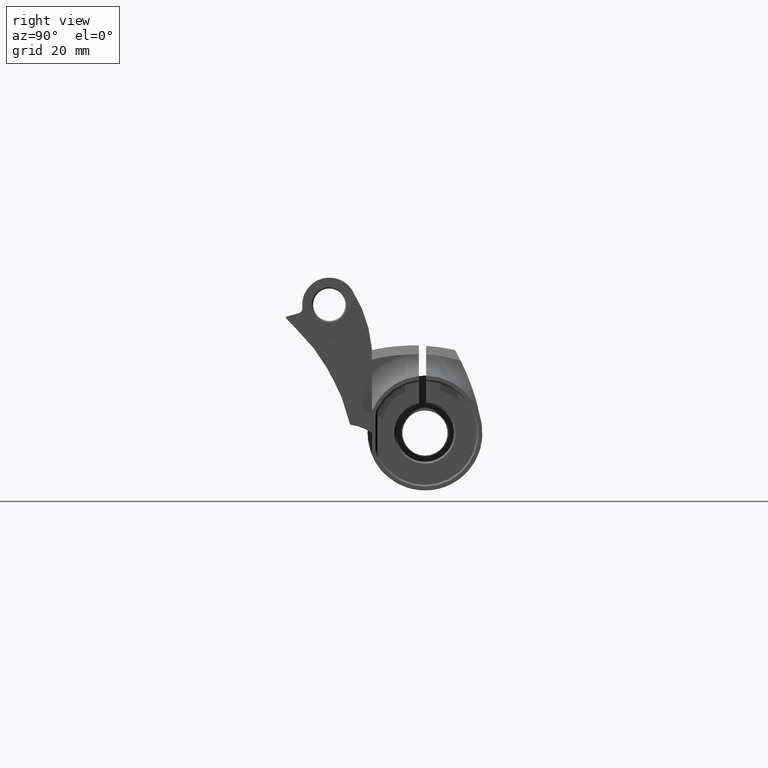
[diagram: clean part render]
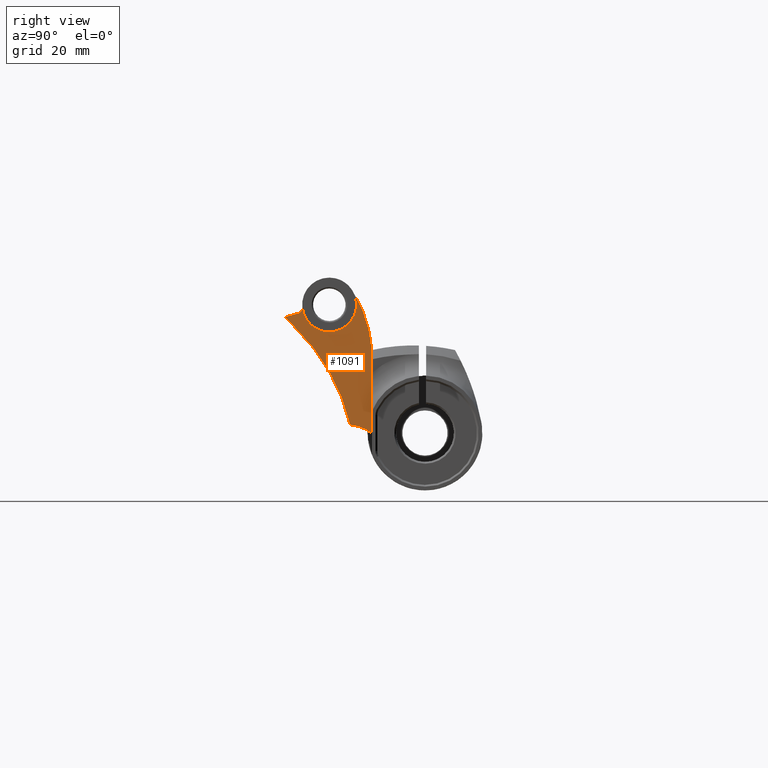
[diagram: same view with one face highlighted and labeled with its STEP entity id]
A machine part, right view. The second image highlights one B-rep face of the part: STEP entity #1091.
In plain terms, the highlighted planar face has unit normal (-1, 0, 0).
Its self-contained STEP definition (entity closure, byte-faithful):
#55 = CIRCLE ( 'NONE', #1735, 7.500000000000000000 ) ;
#170 = CARTESIAN_POINT ( 'NONE',  ( 5.500000000000002700, -35.02346521516957300, 33.11917342974239600 ) ) ;
#171 = DIRECTION ( 'NONE',  ( 0.0000000000000000000, 0.0000000000000000000, 1.000000000000000000 ) ) ;
#202 = CARTESIAN_POINT ( 'NONE',  ( 5.500000000000000000, -22.19458540097304000, -10.62220267494092600 ) ) ;
#217 = EDGE_CURVE ( 'NONE', #1862, #1944, #884, .T. ) ;
#218 = CIRCLE ( 'NONE', #3281, 54.19815769900883100 ) ;
#226 = ORIENTED_EDGE ( 'NONE', *, *, #1291, .F. ) ;
#256 = EDGE_CURVE ( 'NONE', #1238, #556, #2450, .T. ) ;
#276 = VECTOR ( 'NONE', #2698, 1000.000000000000100 ) ;
#352 = DIRECTION ( 'NONE',  ( -1.000000000000000000, 0.0000000000000000000, 6.052673018837545200E-017 ) ) ;
#372 = LINE ( 'NONE', #3729, #2042 ) ;
#425 = CARTESIAN_POINT ( 'NONE',  ( 5.500000000000003600, -38.46647759353570700, 31.78111409114066900 ) ) ;
#520 = DIRECTION ( 'NONE',  ( 6.672013369141561800E-017, -7.205774438672885400E-015, 1.000000000000000000 ) ) ;
#532 = LINE ( 'NONE', #3371, #276 ) ;
#535 = CIRCLE ( 'NONE', #2859, 1.499999999999994400 ) ;
#556 = VERTEX_POINT ( 'NONE', #2083 ) ;
#610 = ORIENTED_EDGE ( 'NONE', *, *, #1523, .F. ) ;
#645 = EDGE_CURVE ( 'NONE', #556, #4059, #55, .T. ) ;
#658 = VERTEX_POINT ( 'NONE', #170 ) ;
#691 = CIRCLE ( 'NONE', #3195, 35.51494799158853500 ) ;
#734 = EDGE_CURVE ( 'NONE', #1862, #658, #1512, .T. ) ;
#743 = CARTESIAN_POINT ( 'NONE',  ( 5.500000000000000900, -38.75838152966954200, 5.878130471128693000E-016 ) ) ;
#783 = CARTESIAN_POINT ( 'NONE',  ( 5.500000000000002700, -35.42432277928695300, 34.56461910955533100 ) ) ;
#827 = CARTESIAN_POINT ( 'NONE',  ( 5.500000000000002700, -26.47209325125959400, 35.49067876071981000 ) ) ;
#844 = EDGE_CURVE ( 'NONE', #4027, #2804, #218, .T. ) ;
#884 = CIRCLE ( 'NONE', #3455, 0.2500000000000002200 ) ;
#974 = VERTEX_POINT ( 'NONE', #2326 ) ;
#993 = EDGE_CURVE ( 'NONE', #4059, #1107, #691, .T. ) ;
#1027 = ORIENTED_EDGE ( 'NONE', *, *, #993, .F. ) ;
#1046 = CARTESIAN_POINT ( 'NONE',  ( 5.500000000000000000, -73.51849071569044700, -9.887231263459192100 ) ) ;
#1058 = PLANE ( 'NONE',  #1566 ) ;
#1091 = ADVANCED_FACE ( 'NONE', ( #2041 ), #1058, .F. ) ;
#1107 = VERTEX_POINT ( 'NONE', #3294 ) ;
#1116 = DIRECTION ( 'NONE',  ( 0.0000000000000000000, 0.0000000000000000000, 1.000000000000000000 ) ) ;
#1164 = DIRECTION ( 'NONE',  ( -1.156482317317871500E-016, 0.0000000000000000000, -1.000000000000000000 ) ) ;
#1177 = DIRECTION ( 'NONE',  ( 1.000000000000000000, 0.0000000000000000000, -6.052673018837545200E-017 ) ) ;
#1238 = VERTEX_POINT ( 'NONE', #3368 ) ;
#1255 = ORIENTED_EDGE ( 'NONE', *, *, #256, .F. ) ;
#1291 = EDGE_CURVE ( 'NONE', #2804, #1944, #532, .T. ) ;
#1381 = DIRECTION ( 'NONE',  ( 6.401411227335985800E-017, -1.792395143654076100E-015, 1.000000000000000000 ) ) ;
#1471 = ORIENTED_EDGE ( 'NONE', *, *, #217, .T. ) ;
#1486 = ORIENTED_EDGE ( 'NONE', *, *, #1901, .T. ) ;
#1512 = LINE ( 'NONE', #2002, #3167 ) ;
#1522 = CARTESIAN_POINT ( 'NONE',  ( 5.500000000000000900, -20.70657975428310500, 2.292356519836830300 ) ) ;
#1523 = EDGE_CURVE ( 'NONE', #658, #1238, #535, .T. ) ;
#1566 = AXIS2_PLACEMENT_3D ( 'NONE', #743, #3740, #1966 ) ;
#1725 = CARTESIAN_POINT ( 'NONE',  ( 5.500000000000003600, -38.28664264345104600, 31.95477868375542500 ) ) ;
#1735 = AXIS2_PLACEMENT_3D ( 'NONE', #827, #3141, #1164 ) ;
#1862 = VERTEX_POINT ( 'NONE', #2700 ) ;
#1901 = EDGE_CURVE ( 'NONE', #974, #1107, #372, .T. ) ;
#1944 = VERTEX_POINT ( 'NONE', #425 ) ;
#1966 = DIRECTION ( 'NONE',  ( 6.052673018837545200E-017, 0.0000000000000000000, 1.000000000000000000 ) ) ;
#2002 = CARTESIAN_POINT ( 'NONE',  ( 5.500000000000002700, -38.75838152966954200, 32.08338946572204300 ) ) ;
#2041 = FACE_OUTER_BOUND ( 'NONE', #2555, .T. ) ;
#2042 = VECTOR ( 'NONE', #4058, 1000.000000000000000 ) ;
#2083 = CARTESIAN_POINT ( 'NONE',  ( 5.500000000000001800, -26.47209325125959400, 27.99067876071981000 ) ) ;
#2203 = EDGE_CURVE ( 'NONE', #974, #4027, #3853, .T. ) ;
#2205 = CARTESIAN_POINT ( 'NONE',  ( 5.500000000000002700, -20.13872495492623900, 39.50794723855391800 ) ) ;
#2250 = ORIENTED_EDGE ( 'NONE', *, *, #645, .F. ) ;
#2326 = CARTESIAN_POINT ( 'NONE',  ( 5.500000000000000900, -14.69999999999999800, 5.878130471128693000E-016 ) ) ;
#2329 = DIRECTION ( 'NONE',  ( 1.617506508486825400E-017, 0.9636304532086229500, 0.2672383760782567900 ) ) ;
#2342 = CARTESIAN_POINT ( 'NONE',  ( 5.500000000000000000, -50.12929104237355200, 20.48486976408373600 ) ) ;
#2378 = ORIENTED_EDGE ( 'NONE', *, *, #2203, .F. ) ;
#2450 = CIRCLE ( 'NONE', #3877, 7.500000000000000000 ) ;
#2473 = ORIENTED_EDGE ( 'NONE', *, *, #734, .F. ) ;
#2516 = DIRECTION ( 'NONE',  ( 1.000000000000000000, -0.0000000000000000000, -6.052673018837545200E-017 ) ) ;
#2555 = EDGE_LOOP ( 'NONE', ( #2473, #1471, #226, #2604, #2378, #1486, #1027, #2250, #1255, #610 ) ) ;
#2604 = ORIENTED_EDGE ( 'NONE', *, *, #844, .F. ) ;
#2675 = DIRECTION ( 'NONE',  ( 4.884488290360622800E-017, 0.0000000000000000000, 1.000000000000000000 ) ) ;
#2698 = DIRECTION ( 'NONE',  ( 4.353928600885728200E-017, -0.6946583704589994700, 0.7193398003386489700 ) ) ;
#2700 = CARTESIAN_POINT ( 'NONE',  ( 5.500000000000002700, -38.35345223747060600, 32.19568629705758400 ) ) ;
#2804 = VERTEX_POINT ( 'NONE', #3125 ) ;
#2816 = DIRECTION ( 'NONE',  ( -1.156482317317871500E-016, 0.0000000000000000000, -1.000000000000000000 ) ) ;
#2859 = AXIS2_PLACEMENT_3D ( 'NONE', #783, #3092, #1116 ) ;
#3092 = DIRECTION ( 'NONE',  ( 1.000000000000000000, -0.0000000000000000000, -6.052673018837545200E-017 ) ) ;
#3125 = CARTESIAN_POINT ( 'NONE',  ( 5.500000000000003600, -35.97974804783353900, 29.20603026436744500 ) ) ;
#3141 = DIRECTION ( 'NONE',  ( 1.000000000000000000, 0.0000000000000000000, -6.052673018837545200E-017 ) ) ;
#3156 = CARTESIAN_POINT ( 'NONE',  ( 5.500000000000002700, -26.47209325125959400, 35.49067876071981000 ) ) ;
#3167 = VECTOR ( 'NONE', #2329, 1000.000000000000100 ) ;
#3195 = AXIS2_PLACEMENT_3D ( 'NONE', #2342, #352, #2675 ) ;
#3257 = DIRECTION ( 'NONE',  ( 1.000000000000000000, -0.0000000000000000000, -6.052673018837545200E-017 ) ) ;
#3281 = AXIS2_PLACEMENT_3D ( 'NONE', #1046, #3375, #1381 ) ;
#3294 = CARTESIAN_POINT ( 'NONE',  ( 5.500000000000002700, -14.69999999999999800, 22.94999999999988600 ) ) ;
#3368 = CARTESIAN_POINT ( 'NONE',  ( 5.500000000000002700, -33.93228452461573100, 34.71896238474941000 ) ) ;
#3371 = CARTESIAN_POINT ( 'NONE',  ( 5.500000000000003600, -38.75838152966954200, 32.08338946572204300 ) ) ;
#3375 = DIRECTION ( 'NONE',  ( 1.000000000000000000, -0.0000000000000000000, -6.052673018837545200E-017 ) ) ;
#3455 = AXIS2_PLACEMENT_3D ( 'NONE', #1725, #3257, #171 ) ;
#3729 = CARTESIAN_POINT ( 'NONE',  ( 5.500000000000000900, -14.69999999999999800, 5.878130471128693000E-016 ) ) ;
#3740 = DIRECTION ( 'NONE',  ( -1.000000000000000000, 0.0000000000000000000, 6.052673018837545200E-017 ) ) ;
#3853 = CIRCLE ( 'NONE', #4009, 13.00000000000000900 ) ;
#3877 = AXIS2_PLACEMENT_3D ( 'NONE', #3156, #1177, #2816 ) ;
#4009 = AXIS2_PLACEMENT_3D ( 'NONE', #202, #2516, #520 ) ;
#4027 = VERTEX_POINT ( 'NONE', #1522 ) ;
#4058 = DIRECTION ( 'NONE',  ( 6.052673018837545200E-017, 0.0000000000000000000, 1.000000000000000000 ) ) ;
#4059 = VERTEX_POINT ( 'NONE', #2205 ) ;